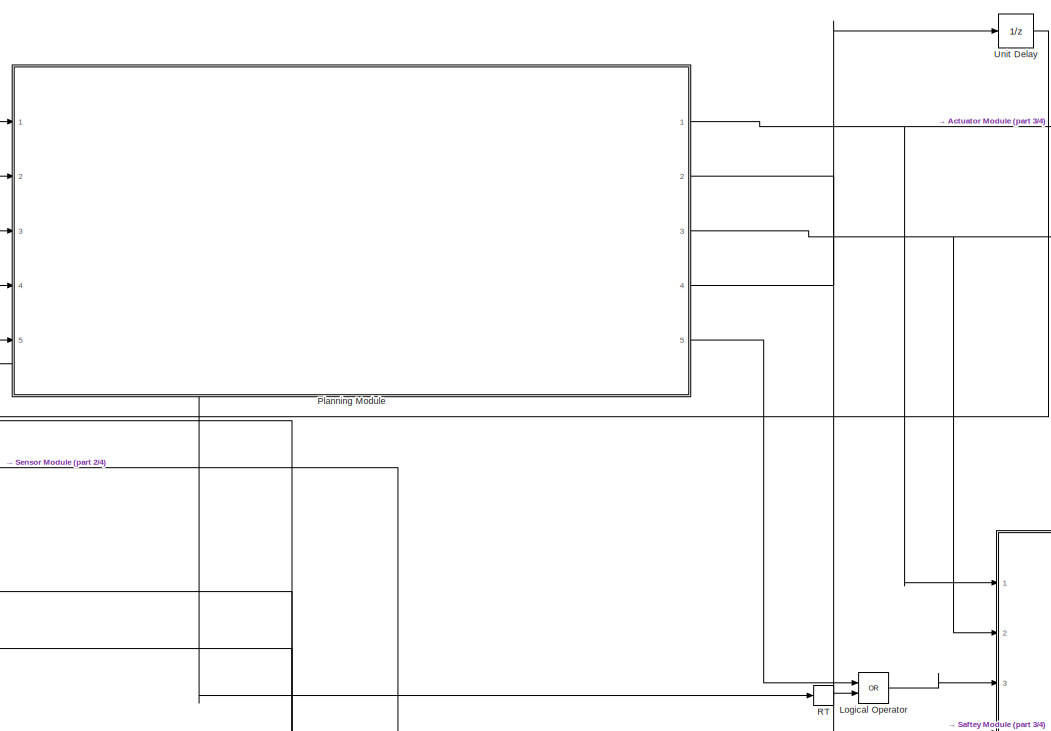
[diagram: root canvas - part 1/4, central region]
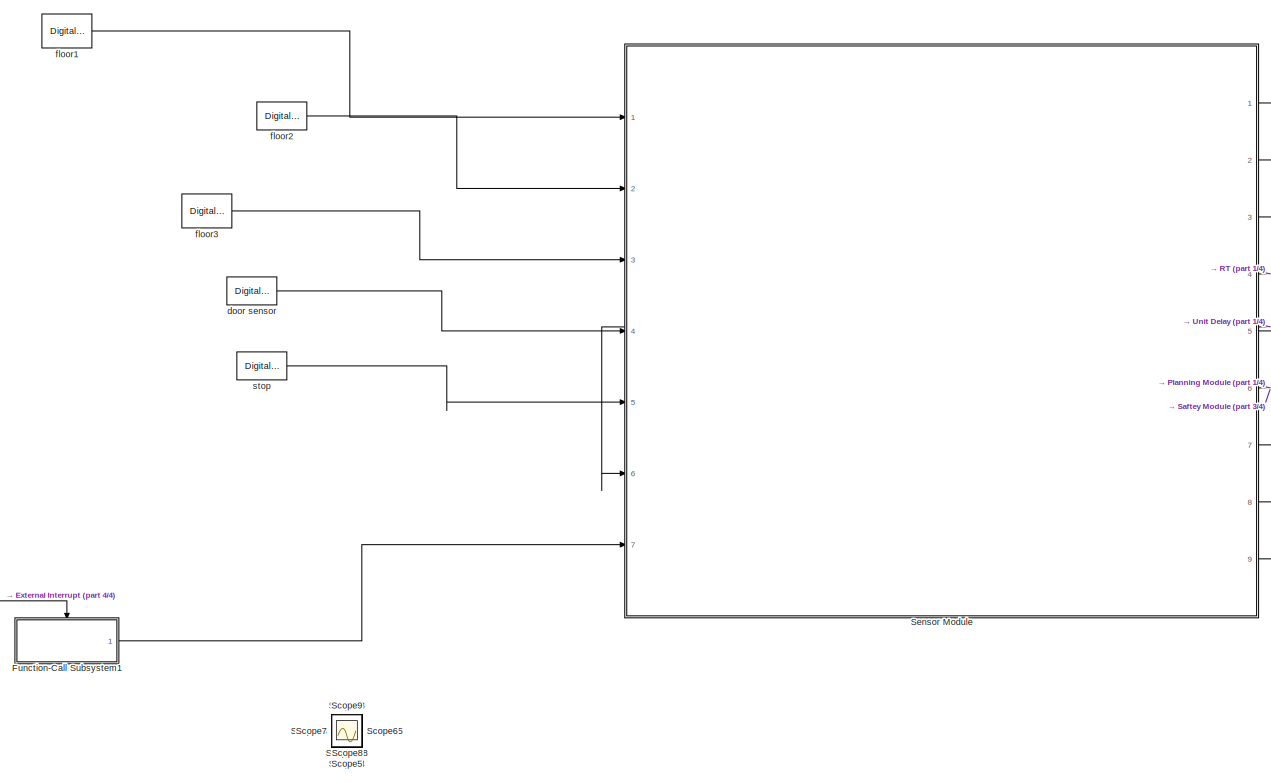
[diagram: root canvas - part 2/4, middle left region]
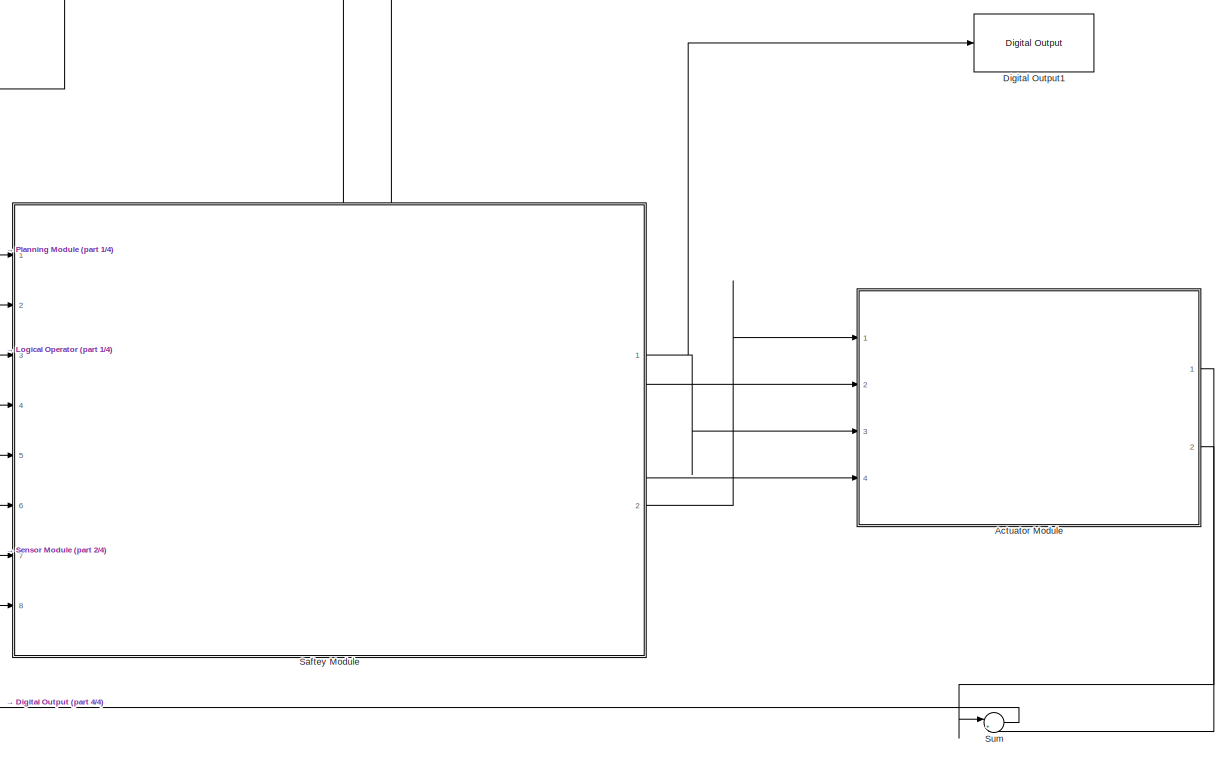
[diagram: root canvas - part 3/4, middle right region]
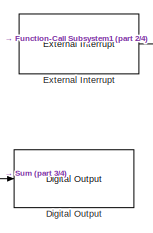
[diagram: root canvas - part 4/4, bottom left region]
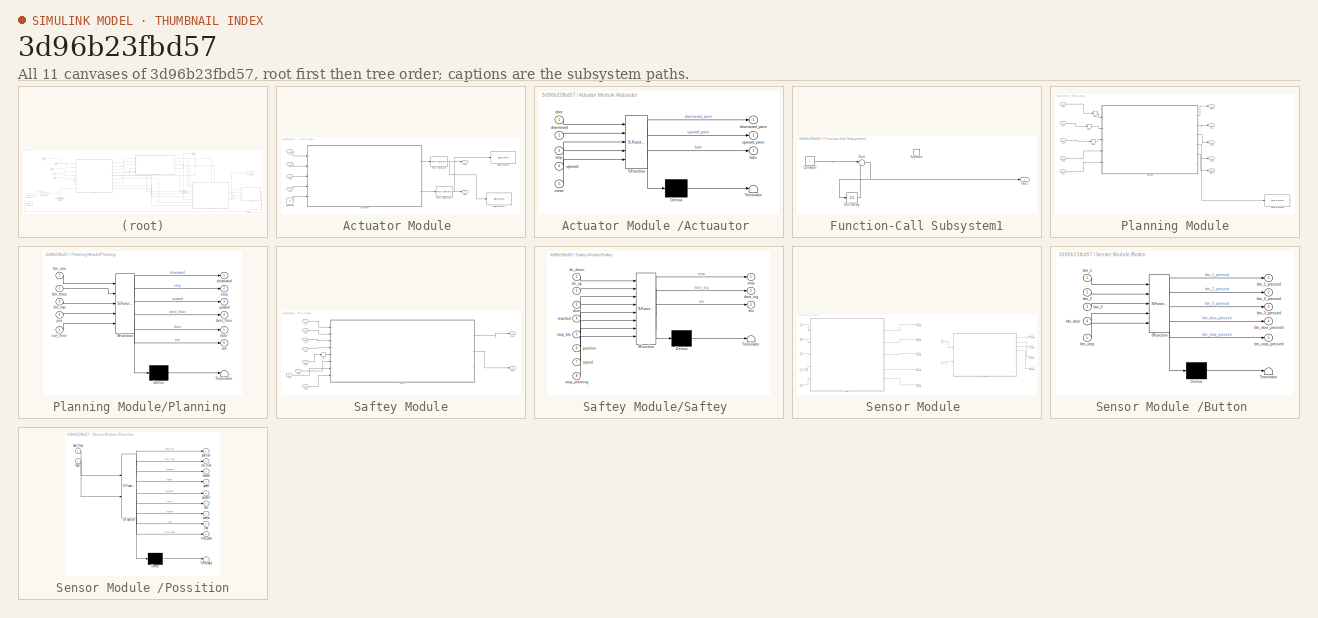
[diagram: thumbnail index - all 11 canvases of the model, root first then tree order]
MODEL slx_3d96b23fbd57
KIND model
CONFIG AbsTol = auto
CONFIG EnableMultiTasking = on
CONFIG FixedStep = auto
CONFIG MaxStep = auto
CONFIG MinStep = auto
CONFIG RelTol = 1e-3
CONFIG SampleTimeConstraint = Unconstrained
CONFIG Solver = FixedStepAuto
CONFIG SolverName = FixedStepAuto
CONFIG StartTime = 0.0
CONFIG StopTime = 20
BLOCK [SubSystem] Actuator Module 
  Ports = [4, 2]
  RequestExecContextInheritance = off
BLOCK [SubSystem] Actuator Module /Actuautor 
  ErrorFcn = Stateflow.Translate.translate
  PermitHierarchicalResolution = ExplicitOnly
  Ports = [5, 3]
  RequestExecContextInheritance = off
  SFBlockType = Chart
  TreatAsAtomicUnit = on
BLOCK [Demux] Actuator Module /Actuautor / Demux 
  Outputs = 1
  Ports = [1, 1]
BLOCK [S-Function] Actuator Module /Actuautor / SFunction 
  EnableBusSupport = on
  FunctionName = sf_sfun
  PortCounts = [5 4]
  Ports = [5, 4]
  SFcnIsStateOwnerBlock = off
  SFunctionDeploymentMode = off
  Tag = Stateflow S-Function 5
BLOCK [Terminator] Actuator Module /Actuautor / Terminator 
BLOCK [Outport] Actuator Module /Actuautor /balo
  IconDisplay = Port number
  Port = 3
BLOCK [Inport] Actuator Module /Actuautor /const
  IconDisplay = Port number
  Port = 5
BLOCK [Inport] Actuator Module /Actuautor /door
  IconDisplay = Port number
BLOCK [Inport] Actuator Module /Actuautor /downward
  IconDisplay = Port number
  Port = 2
BLOCK [Outport] Actuator Module /Actuautor /downward_pwm
  IconDisplay = Port number
  VectorParamsAs1DForOutWhenUnconnected = off
BLOCK [Inport] Actuator Module /Actuautor /stop
  IconDisplay = Port number
  Port = 3
BLOCK [Inport] Actuator Module /Actuautor /upward
  IconDisplay = Port number
  Port = 4
BLOCK [Outport] Actuator Module /Actuautor /upward_pwm
  IconDisplay = Port number
  Port = 2
  VectorParamsAs1DForOutWhenUnconnected = off
BLOCK [Constant] Actuator Module /Constant
  Value = 0.5
BLOCK [Reference] Actuator Module /Digital Output1  REF=arduinolib/Digital Output
  Ports = [1]
  SourceBlock = arduinolib/Digital Output
  SourceProductBaseCode = ARDUINO
  SourceProductName = Simulink Support Package for Arduino Hardware
  SourceType = Arduino Digital Output
BLOCK [Reference] Actuator Module /Digital Output2  REF=arduinolib/Digital Output
  Ports = [1]
  SourceBlock = arduinolib/Digital Output
  SourceProductBaseCode = ARDUINO
  SourceProductName = Simulink Support Package for Arduino Hardware
  SourceType = Arduino Digital Output
BLOCK [Inport] Actuator Module /In1
  IconDisplay = Port number
BLOCK [Inport] Actuator Module /In2
  IconDisplay = Port number
  Port = 2
BLOCK [Inport] Actuator Module /In3
  IconDisplay = Port number
  Port = 3
BLOCK [Inport] Actuator Module /In4
  IconDisplay = Port number
  Port = 4
BLOCK [Outport] Actuator Module /Out1
  IconDisplay = Port number
  VectorParamsAs1DForOutWhenUnconnected = off
BLOCK [Outport] Actuator Module /Out2
  IconDisplay = Port number
  Port = 2
  VectorParamsAs1DForOutWhenUnconnected = off
BLOCK [Reference] Actuator Module /PWM Generator  REF=eePwmGenerator/PWM Generator
  Ports = [1, 1]
  SourceBlock = eePwmGenerator/PWM Generator
  SourceProductBaseCode = PS
  SourceProductName = Simscape Electrical
  SourceType = PWM Generator
BLOCK [Reference] Actuator Module /PWM Generator1  REF=eePwmGenerator/PWM Generator
  Ports = [1, 1]
  SourceBlock = eePwmGenerator/PWM Generator
  SourceProductBaseCode = PS
  SourceProductName = Simscape Electrical
  SourceType = PWM Generator
BLOCK [Reference] Digital Output  REF=arduinolib/Digital Output
  Ports = [1]
  SourceBlock = arduinolib/Digital Output
  SourceProductBaseCode = ARDUINO
  SourceProductName = Simulink Support Package for Arduino Hardware
  SourceType = Arduino Digital Output
BLOCK [Reference] Digital Output1  REF=arduinolib/Digital Output
  Ports = [1]
  SourceBlock = arduinolib/Digital Output
  SourceProductBaseCode = ARDUINO
  SourceProductName = Simulink Support Package for Arduino Hardware
  SourceType = Arduino Digital Output
BLOCK [Reference] External Interrupt  REF=arduinolib/External Interrupt
  Ports = [0, 1]
  SourceBlock = arduinolib/External Interrupt
  SourceProductBaseCode = ARDUINO
  SourceProductName = Simulink Support Package for Arduino Hardware
  SourceType = Arduino Interrupt Block
BLOCK [SubSystem] Function-Call Subsystem1
  Ports = [0, 1, 0, 1]
  RequestExecContextInheritance = off
  TreatAsAtomicUnit = on
BLOCK [Constant] Function-Call Subsystem1/Constant
BLOCK [Outport] Function-Call Subsystem1/Out1
  IconDisplay = Port number
  VectorParamsAs1DForOutWhenUnconnected = off
BLOCK [Sum] Function-Call Subsystem1/Sum
  IconShape = round
  InputSameDT = off
  Inputs = |++
  OutDataTypeStr = Inherit: Inherit via internal rule
  Ports = [2, 1]
  SaturateOnIntegerOverflow = off
BLOCK [UnitDelay] Function-Call Subsystem1/Unit Delay
  HasFrameUpgradeWarning = on
  SampleTime = -1
BLOCK [TriggerPort] Function-Call Subsystem1/function
  Ports = []
  TriggerType = function-call
  VariantControl = Variant
BLOCK [Logic] Logical Operator
  AllPortsSameDT = off
  Operator = OR
  OutDataTypeStr = boolean
  Ports = [2, 1]
BLOCK [SubSystem] Planning Module
  Ports = [5, 5]
  RequestExecContextInheritance = off
BLOCK [Inport] Planning Module/In1
  IconDisplay = Port number
  Port = 5
BLOCK [Inport] Planning Module/In10
  IconDisplay = Port number
  Port = 4
BLOCK [Inport] Planning Module/In6
  IconDisplay = Port number
BLOCK [Inport] Planning Module/In7
  IconDisplay = Port number
  Port = 2
BLOCK [Inport] Planning Module/In8
  IconDisplay = Port number
  Port = 3
BLOCK [Outport] Planning Module/Out10
  IconDisplay = Port number
  Port = 5
  VectorParamsAs1DForOutWhenUnconnected = off
BLOCK [Outport] Planning Module/Out6
  IconDisplay = Port number
  VectorParamsAs1DForOutWhenUnconnected = off
BLOCK [Outport] Planning Module/Out7
  IconDisplay = Port number
  Port = 2
  VectorParamsAs1DForOutWhenUnconnected = off
BLOCK [Outport] Planning Module/Out8
  IconDisplay = Port number
  Port = 3
  VectorParamsAs1DForOutWhenUnconnected = off
BLOCK [Outport] Planning Module/Out9
  IconDisplay = Port number
  Port = 4
  VectorParamsAs1DForOutWhenUnconnected = off
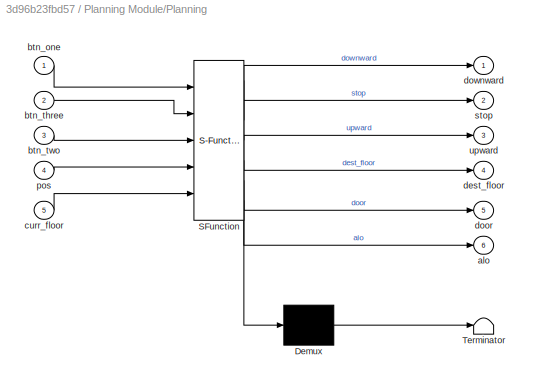
BLOCK [SubSystem] Planning Module/Planning 
  ErrorFcn = Stateflow.Translate.translate
  PermitHierarchicalResolution = ExplicitOnly
  Ports = [5, 6]
  RequestExecContextInheritance = off
  SFBlockType = Chart
  TreatAsAtomicUnit = on
BLOCK [Demux] Planning Module/Planning / Demux 
  Outputs = 1
  Ports = [1, 1]
BLOCK [S-Function] Planning Module/Planning / SFunction 
  EnableBusSupport = on
  FunctionName = sf_sfun
  PortCounts = [5 7]
  Ports = [5, 7]
  SFcnIsStateOwnerBlock = off
  SFunctionDeploymentMode = off
  Tag = Stateflow S-Function 6
BLOCK [Terminator] Planning Module/Planning / Terminator 
BLOCK [Outport] Planning Module/Planning /alo
  IconDisplay = Port number
  Port = 6
BLOCK [Inport] Planning Module/Planning /btn_one
  IconDisplay = Port number
BLOCK [Inport] Planning Module/Planning /btn_three
  IconDisplay = Port number
  Port = 2
BLOCK [Inport] Planning Module/Planning /btn_two
  IconDisplay = Port number
  Port = 3
BLOCK [Inport] Planning Module/Planning /curr_floor
  IconDisplay = Port number
  Port = 5
BLOCK [Outport] Planning Module/Planning /dest_floor
  IconDisplay = Port number
  Port = 4
  VectorParamsAs1DForOutWhenUnconnected = off
BLOCK [Outport] Planning Module/Planning /door
  IconDisplay = Port number
  Port = 5
  VectorParamsAs1DForOutWhenUnconnected = off
BLOCK [Outport] Planning Module/Planning /downward
  IconDisplay = Port number
  VectorParamsAs1DForOutWhenUnconnected = off
BLOCK [Inport] Planning Module/Planning /pos
  IconDisplay = Port number
  Port = 4
BLOCK [Outport] Planning Module/Planning /stop
  IconDisplay = Port number
  Port = 2
  VectorParamsAs1DForOutWhenUnconnected = off
BLOCK [Outport] Planning Module/Planning /upward
  IconDisplay = Port number
  Port = 3
  VectorParamsAs1DForOutWhenUnconnected = off
BLOCK [RateTransition] Planning Module/RT
BLOCK [RateTransition] Planning Module/RT1
  OutPortSampleTime = 5e-05
BLOCK [RateTransition] Planning Module/RT2
  OutPortSampleTime = 5e-05
BLOCK [Reference] Planning Module/Serial Transmit  REF=arduinolib/Serial Transmit
  Ports = [1]
  SourceBlock = arduinolib/Serial Transmit
  SourceProductBaseCode = ARDUINO
  SourceProductName = Simulink Support Package for Arduino Hardware
  SourceType = Arduino Serial Transmit
BLOCK [RateTransition] RT
BLOCK [SubSystem] Saftey Module
  Ports = [8, 2]
  RequestExecContextInheritance = off
BLOCK [Inport] Saftey Module/In1
  IconDisplay = Port number
BLOCK [Inport] Saftey Module/In2
  IconDisplay = Port number
  Port = 2
BLOCK [Inport] Saftey Module/In3
  IconDisplay = Port number
  Port = 3
BLOCK [Inport] Saftey Module/In4
  IconDisplay = Port number
  Port = 4
BLOCK [Inport] Saftey Module/In5
  IconDisplay = Port number
  Port = 5
BLOCK [Inport] Saftey Module/In6
  IconDisplay = Port number
  Port = 7
BLOCK [Inport] Saftey Module/In7
  IconDisplay = Port number
  Port = 8
BLOCK [Inport] Saftey Module/In8
  IconDisplay = Port number
  Port = 6
BLOCK [Outport] Saftey Module/Out1
  IconDisplay = Port number
  VectorParamsAs1DForOutWhenUnconnected = off
BLOCK [Outport] Saftey Module/Out2
  IconDisplay = Port number
  Port = 2
  VectorParamsAs1DForOutWhenUnconnected = off
BLOCK [RateTransition] Saftey Module/RT
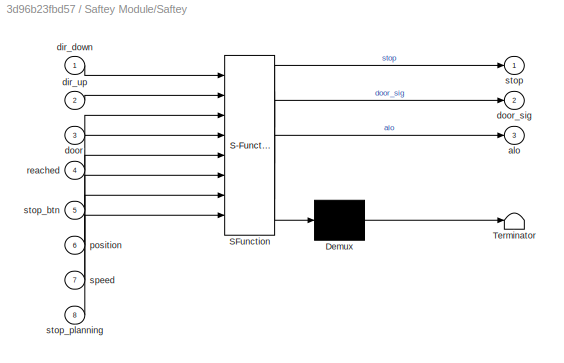
BLOCK [SubSystem] Saftey Module/Saftey 
  ErrorFcn = Stateflow.Translate.translate
  PermitHierarchicalResolution = ExplicitOnly
  Ports = [8, 3]
  RequestExecContextInheritance = off
  SFBlockType = Chart
  TreatAsAtomicUnit = on
BLOCK [Demux] Saftey Module/Saftey / Demux 
  Outputs = 1
  Ports = [1, 1]
BLOCK [S-Function] Saftey Module/Saftey / SFunction 
  EnableBusSupport = on
  FunctionName = sf_sfun
  PortCounts = [8 4]
  Ports = [8, 4]
  SFcnIsStateOwnerBlock = off
  SFunctionDeploymentMode = off
  Tag = Stateflow S-Function 2
BLOCK [Terminator] Saftey Module/Saftey / Terminator 
BLOCK [Outport] Saftey Module/Saftey /alo
  IconDisplay = Port number
  Port = 3
BLOCK [Inport] Saftey Module/Saftey /dir_down
  IconDisplay = Port number
BLOCK [Inport] Saftey Module/Saftey /dir_up
  IconDisplay = Port number
  Port = 2
BLOCK [Inport] Saftey Module/Saftey /door
  IconDisplay = Port number
  Port = 3
BLOCK [Outport] Saftey Module/Saftey /door_sig
  IconDisplay = Port number
  Port = 2
  VectorParamsAs1DForOutWhenUnconnected = off
BLOCK [Inport] Saftey Module/Saftey /position
  IconDisplay = Port number
  Port = 6
BLOCK [Inport] Saftey Module/Saftey /reached
  IconDisplay = Port number
  Port = 4
BLOCK [Inport] Saftey Module/Saftey /speed
  IconDisplay = Port number
  Port = 7
BLOCK [Outport] Saftey Module/Saftey /stop
  IconDisplay = Port number
  VectorParamsAs1DForOutWhenUnconnected = off
BLOCK [Inport] Saftey Module/Saftey /stop_btn
  IconDisplay = Port number
  Port = 5
BLOCK [Inport] Saftey Module/Saftey /stop_planning
  IconDisplay = Port number
  Port = 8
BLOCK [Scope] Scope
  Floating = off
  IOType = viewer
  NumInputPorts = 1
  Ports = []
  ScopeSpecificationString = Simulink.scopes.TimeScopeBlockCfg('CurrentConfiguration', extmgr.ConfigurationSet(extmgr.Configuration('Core','General UI',true),extmgr.Configuration('Core','Source UI',true),extmgr.Configuration('Sources','WiredSimulink',true,'DataLoggingVariableName','ScopeData2'),extmgr.Configuration('Visuals','Time Domain',true,'SerializedDisplays',{struct('MinYLimReal','-36.34613','MaxYLimReal','269.95965','Y...<+1468ch>
BLOCK [Scope] Scope1
  Floating = off
  IOType = viewer
  NumInputPorts = 1
  Ports = []
  ScopeSpecificationString = Simulink.scopes.TimeScopeBlockCfg('CurrentConfiguration', extmgr.ConfigurationSet(extmgr.Configuration('Core','General UI',true),extmgr.Configuration('Core','Source UI',true),extmgr.Configuration('Sources','WiredSimulink',true,'DataLoggingVariableName','ScopeData1'),extmgr.Configuration('Visuals','Time Domain',true,'SerializedDisplays',{struct('MinYLimReal','-1.25','MaxYLimReal','1.25','YLabelReal...<+1341ch>
BLOCK [Scope] Scope10
  Floating = off
  IOType = viewer
  NumInputPorts = 1
  Ports = []
  ScopeSpecificationString = Simulink.scopes.TimeScopeBlockCfg('CurrentConfiguration', extmgr.ConfigurationSet(extmgr.Configuration('Core','General UI',true),extmgr.Configuration('Core','Source UI',true),extmgr.Configuration('Sources','WiredSimulink',true,'DataLoggingVariableName','ScopeData7'),extmgr.Configuration('Visuals','Time Domain',true,'SerializedDisplays',{struct('MinYLimReal','-0.125','MaxYLimReal','1.125','YLabelRe...<+1347ch>
BLOCK [Scope] Scope11
  Floating = off
  IOType = viewer
  NumInputPorts = 1
  Ports = []
  ScopeSpecificationString = Simulink.scopes.TimeScopeBlockCfg('CurrentConfiguration', extmgr.ConfigurationSet(extmgr.Configuration('Core','General UI',true),extmgr.Configuration('Core','Source UI',true),extmgr.Configuration('Sources','WiredSimulink',true,'DataLoggingVariableName','ScopeData8'),extmgr.Configuration('Visuals','Time Domain',true,'SerializedDisplays',{struct('MinYLimReal','-1.25','MaxYLimReal','1.25','YLabelReal...<+1341ch>
BLOCK [Scope] Scope12
  Floating = off
  IOType = viewer
  NumInputPorts = 1
  Ports = []
  ScopeSpecificationString = Simulink.scopes.TimeScopeBlockCfg('CurrentConfiguration', extmgr.ConfigurationSet(extmgr.Configuration('Core','General UI',true),extmgr.Configuration('Core','Source UI',true),extmgr.Configuration('Sources','WiredSimulink',true,'DataLoggingVariableName','ScopeData9'),extmgr.Configuration('Visuals','Time Domain',true,'SerializedDisplays',{struct('MinYLimReal','-1.5','MaxYLimReal','3.02375','YLabelRe...<+1410ch>
BLOCK [Scope] Scope13
  Floating = off
  IOType = viewer
  NumInputPorts = 1
  Ports = []
  ScopeSpecificationString = Simulink.scopes.TimeScopeBlockCfg('CurrentConfiguration', extmgr.ConfigurationSet(extmgr.Configuration('Core','General UI',true),extmgr.Configuration('Core','Source UI',true),extmgr.Configuration('Sources','WiredSimulink',true,'DataLoggingVariableName','ScopeData10'),extmgr.Configuration('Visuals','Time Domain',true,'SerializedDisplays',{struct('MinYLimReal','0.75','MaxYLimReal','3.25','YLabelReal...<+1354ch>
BLOCK [Scope] Scope14
  Floating = off
  IOType = viewer
  NumInputPorts = 1
  Ports = []
  ScopeSpecificationString = Simulink.scopes.TimeScopeBlockCfg('CurrentConfiguration', extmgr.ConfigurationSet(extmgr.Configuration('Core','General UI',true),extmgr.Configuration('Core','Source UI',true),extmgr.Configuration('Sources','WiredSimulink',true,'DataLoggingVariableName','ScopeData11'),extmgr.Configuration('Visuals','Time Domain',true,'SerializedDisplays',{struct('MinYLimReal','-0.125','MaxYLimReal','1.125','YLabelR...<+1362ch>
BLOCK [Scope] Scope15
  Floating = off
  IOType = viewer
  NumInputPorts = 1
  Ports = []
  ScopeSpecificationString = Simulink.scopes.TimeScopeBlockCfg('CurrentConfiguration', extmgr.ConfigurationSet(extmgr.Configuration('Core','General UI',true),extmgr.Configuration('Core','Source UI',true),extmgr.Configuration('Sources','WiredSimulink',true,'DataLoggingVariableName','ScopeData12'),extmgr.Configuration('Visuals','Time Domain',true,'SerializedDisplays',{struct('MinYLimReal','-0.125','MaxYLimReal','1.125','YLabelR...<+1362ch>
BLOCK [Scope] Scope16
  Floating = off
  IOType = viewer
  NumInputPorts = 1
  Ports = []
  ScopeSpecificationString = Simulink.scopes.TimeScopeBlockCfg('CurrentConfiguration', extmgr.ConfigurationSet(extmgr.Configuration('Core','General UI',true),extmgr.Configuration('Core','Source UI',true),extmgr.Configuration('Sources','WiredSimulink',true,'DataLoggingVariableName','ScopeData1'),extmgr.Configuration('Visuals','Time Domain',true,'SerializedDisplays',{struct('MinYLimReal','-1.00000','MaxYLimReal','1.00000','YLab...<+1359ch>  <repeated x3 — deduplicated; at blocks: Scope16, Scope20, Scope4>
BLOCK [Scope] Scope17
  Floating = off
  IOType = viewer
  NumInputPorts = 1
  Ports = []
  ScopeSpecificationString = Simulink.scopes.TimeScopeBlockCfg('CurrentConfiguration', extmgr.ConfigurationSet(extmgr.Configuration('Core','General UI',true),extmgr.Configuration('Core','Source UI',true),extmgr.Configuration('Sources','WiredSimulink',true,'DataLoggingVariableName','ScopeData2'),extmgr.Configuration('Visuals','Time Domain',true,'SerializedDisplays',{struct('MinYLimReal','-0.0625','MaxYLimReal','0.5625','YLabel...<+1374ch>
BLOCK [Scope] Scope18
  Floating = off
  IOType = viewer
  NumInputPorts = 1
  Ports = []
  ScopeSpecificationString = Simulink.scopes.TimeScopeBlockCfg('CurrentConfiguration', extmgr.ConfigurationSet(extmgr.Configuration('Core','General UI',true),extmgr.Configuration('Core','Source UI',true),extmgr.Configuration('Sources','WiredSimulink',true,'DataLoggingVariableName','ScopeData3'),extmgr.Configuration('Visuals','Time Domain',true,'SerializedDisplays',{struct('MinYLimReal','-1.00000','MaxYLimReal','1.00000','YLab...<+1382ch>
BLOCK [Scope] Scope19
  Floating = off
  IOType = viewer
  NumInputPorts = 1
  Ports = []
  ScopeSpecificationString = Simulink.scopes.TimeScopeBlockCfg('CurrentConfiguration', extmgr.ConfigurationSet(extmgr.Configuration('Core','General UI',true),extmgr.Configuration('Core','Source UI',true),extmgr.Configuration('Sources','WiredSimulink',true,'DataLoggingVariableName','ScopeData4'),extmgr.Configuration('Visuals','Time Domain',true,'SerializedDisplays',{struct('MinYLimReal','-0.125','MaxYLimReal','1.125','YLabelRe...<+1350ch>
BLOCK [Scope] Scope2
  Floating = off
  IOType = viewer
  NumInputPorts = 1
  Ports = []
  ScopeSpecificationString = Simulink.scopes.TimeScopeBlockCfg('CurrentConfiguration', extmgr.ConfigurationSet(extmgr.Configuration('Core','General UI',true),extmgr.Configuration('Core','Source UI',true),extmgr.Configuration('Sources','WiredSimulink',true,'DataLoggingVariableName','ScopeData1'),extmgr.Configuration('Visuals','Time Domain',true,'SerializedDisplays',{struct('MinYLimReal','-194.16515','MaxYLimReal','1519.82517',...<+1477ch>
BLOCK [Scope] Scope20
  Floating = off
  IOType = viewer
  NumInputPorts = 1
  Ports = []
BLOCK [Scope] Scope21
  Floating = off
  IOType = viewer
  NumInputPorts = 1
  Ports = []
  ScopeSpecificationString = Simulink.scopes.TimeScopeBlockCfg('CurrentConfiguration', extmgr.ConfigurationSet(extmgr.Configuration('Core','General UI',true),extmgr.Configuration('Core','Source UI',true),extmgr.Configuration('Sources','WiredSimulink',true,'DataLoggingVariableName','ScopeData2'),extmgr.Configuration('Visuals','Time Domain',true,'SerializedDisplays',{struct('MinYLimReal','-0.125','MaxYLimReal','1.125','YLabelRe...<+1347ch>
BLOCK [Scope] Scope22
  Floating = off
  IOType = viewer
  NumInputPorts = 1
  Ports = []
  ScopeSpecificationString = Simulink.scopes.TimeScopeBlockCfg('CurrentConfiguration', extmgr.ConfigurationSet(extmgr.Configuration('Core','General UI',true),extmgr.Configuration('Core','Source UI',true),extmgr.Configuration('Sources','WiredSimulink',true,'DataLoggingVariableName','ScopeData3'),extmgr.Configuration('Visuals','Time Domain',true,'SerializedDisplays',{struct('MinYLimReal','-0.125','MaxYLimReal','1.125','YLabelRe...<+1366ch>
BLOCK [Scope] Scope23
  Floating = off
  IOType = viewer
  NumInputPorts = 1
  Ports = []
  ScopeSpecificationString = Simulink.scopes.TimeScopeBlockCfg('CurrentConfiguration', extmgr.ConfigurationSet(extmgr.Configuration('Core','General UI',true),extmgr.Configuration('Core','Source UI',true),extmgr.Configuration('Sources','WiredSimulink',true,'DataLoggingVariableName','ScopeData1'),extmgr.Configuration('Visuals','Time Domain',true,'SerializedDisplays',{struct('MinYLimReal','-0.125','MaxYLimReal','1.125','YLabelRe...<+1361ch>
BLOCK [Scope] Scope24
  Floating = off
  IOType = viewer
  NumInputPorts = 1
  Ports = []
  ScopeSpecificationString = Simulink.scopes.TimeScopeBlockCfg('CurrentConfiguration', extmgr.ConfigurationSet(extmgr.Configuration('Core','General UI',true),extmgr.Configuration('Core','Source UI',true),extmgr.Configuration('Sources','WiredSimulink',true,'DataLoggingVariableName','ScopeData2'),extmgr.Configuration('Visuals','Time Domain',true,'SerializedDisplays',{struct('MinYLimReal','-0.125','MaxYLimReal','1.125','YLabelRe...<+1347ch>
BLOCK [Scope] Scope25
  Floating = off
  IOType = viewer
  NumInputPorts = 1
  Ports = []
  ScopeSpecificationString = Simulink.scopes.TimeScopeBlockCfg('CurrentConfiguration', extmgr.ConfigurationSet(extmgr.Configuration('Core','General UI',true),extmgr.Configuration('Core','Source UI',true),extmgr.Configuration('Sources','WiredSimulink',true,'DataLoggingVariableName','ScopeData3'),extmgr.Configuration('Visuals','Time Domain',true,'SerializedDisplays',{struct('MinYLimReal','-1.25','MaxYLimReal','1.25','YLabelReal...<+1416ch>
BLOCK [Scope] Scope26
  Floating = off
  IOType = viewer
  NumInputPorts = 1
  Ports = []
  ScopeSpecificationString = Simulink.scopes.TimeScopeBlockCfg('CurrentConfiguration', extmgr.ConfigurationSet(extmgr.Configuration('Core','General UI',true),extmgr.Configuration('Core','Source UI',true),extmgr.Configuration('Sources','WiredSimulink',true,'DataLoggingVariableName','ScopeData1'),extmgr.Configuration('Visuals','Time Domain',true,'SerializedDisplays',{struct('MinYLimReal','0.9','MaxYLimReal','1.1','YLabelReal','...<+1325ch>
BLOCK [Scope] Scope3
  Floating = off
  IOType = viewer
  NumInputPorts = 1
  Ports = []
  ScopeSpecificationString = Simulink.scopes.TimeScopeBlockCfg('CurrentConfiguration', extmgr.ConfigurationSet(extmgr.Configuration('Core','General UI',true),extmgr.Configuration('Core','Source UI',true),extmgr.Configuration('Sources','WiredSimulink',true,'DataLoggingVariableName','ScopeData1'),extmgr.Configuration('Visuals','Time Domain',true,'SerializedDisplays',{struct('MinYLimReal','-0.125','MaxYLimReal','1.125','YLabelRe...<+1364ch>
BLOCK [Scope] Scope4
  Floating = off
  IOType = viewer
  NumInputPorts = 1
  Ports = []
BLOCK [Scope] Scope5
  Floating = off
  IOType = viewer
  NumInputPorts = 1
  Ports = []
  ScopeSpecificationString = Simulink.scopes.TimeScopeBlockCfg('CurrentConfiguration', extmgr.ConfigurationSet(extmgr.Configuration('Core','General UI',true),extmgr.Configuration('Core','Source UI',true),extmgr.Configuration('Sources','WiredSimulink',true,'DataLoggingVariableName','ScopeData2'),extmgr.Configuration('Visuals','Time Domain',true,'SerializedDisplays',{struct('MinYLimReal','-1.00000','MaxYLimReal','1.00000','YLab...<+1359ch>
BLOCK [Scope] Scope6
  Floating = off
  IOType = viewer
  NumInputPorts = 1
  Ports = []
  ScopeSpecificationString = Simulink.scopes.TimeScopeBlockCfg('CurrentConfiguration', extmgr.ConfigurationSet(extmgr.Configuration('Core','General UI',true),extmgr.Configuration('Core','Source UI',true),extmgr.Configuration('Sources','WiredSimulink',true,'DataLoggingVariableName','ScopeData3'),extmgr.Configuration('Visuals','Time Domain',true,'SerializedDisplays',{struct('MinYLimReal','-0.375','MaxYLimReal','3.375','YLabelRe...<+1347ch>
BLOCK [Scope] Scope7
  Floating = off
  IOType = viewer
  NumInputPorts = 1
  Ports = []
  ScopeSpecificationString = Simulink.scopes.TimeScopeBlockCfg('CurrentConfiguration', extmgr.ConfigurationSet(extmgr.Configuration('Core','General UI',true),extmgr.Configuration('Core','Source UI',true),extmgr.Configuration('Sources','WiredSimulink',true,'DataLoggingVariableName','ScopeData4'),extmgr.Configuration('Visuals','Time Domain',true,'SerializedDisplays',{struct('MinYLimReal','-0.125','MaxYLimReal','1.125','YLabelRe...<+1347ch>
BLOCK [Scope] Scope8
  Floating = off
  IOType = viewer
  NumInputPorts = 1
  Ports = []
  ScopeSpecificationString = Simulink.scopes.TimeScopeBlockCfg('CurrentConfiguration', extmgr.ConfigurationSet(extmgr.Configuration('Core','General UI',true),extmgr.Configuration('Core','Source UI',true),extmgr.Configuration('Sources','WiredSimulink',true,'DataLoggingVariableName','ScopeData5'),extmgr.Configuration('Visuals','Time Domain',true,'SerializedDisplays',{struct('MinYLimReal','-1.00000','MaxYLimReal','1.00000','YLab...<+1359ch>
BLOCK [Scope] Scope9
  Floating = off
  IOType = viewer
  NumInputPorts = 1
  Ports = []
  ScopeSpecificationString = Simulink.scopes.TimeScopeBlockCfg('CurrentConfiguration', extmgr.ConfigurationSet(extmgr.Configuration('Core','General UI',true),extmgr.Configuration('Core','Source UI',true),extmgr.Configuration('Sources','WiredSimulink',true,'DataLoggingVariableName','ScopeData6'),extmgr.Configuration('Visuals','Time Domain',true,'SerializedDisplays',{struct('MinYLimReal','-0.125','MaxYLimReal','1.125','YLabelRe...<+1368ch>
BLOCK [SubSystem] Sensor Module 
  Ports = [7, 9]
  RequestExecContextInheritance = off
BLOCK [SubSystem] Sensor Module /Button 
  ErrorFcn = Stateflow.Translate.translate
  PermitHierarchicalResolution = ExplicitOnly
  Ports = [5, 5]
  RequestExecContextInheritance = off
  SFBlockType = Chart
  TreatAsAtomicUnit = on
BLOCK [Demux] Sensor Module /Button / Demux 
  Outputs = 1
  Ports = [1, 1]
BLOCK [S-Function] Sensor Module /Button / SFunction 
  EnableBusSupport = on
  FunctionName = sf_sfun
  PortCounts = [5 6]
  Ports = [5, 6]
  SFcnIsStateOwnerBlock = off
  SFunctionDeploymentMode = off
  Tag = Stateflow S-Function 3
BLOCK [Terminator] Sensor Module /Button / Terminator 
BLOCK [Inport] Sensor Module /Button /btn_1
  IconDisplay = Port number
BLOCK [Outport] Sensor Module /Button /btn_1_pressed
  IconDisplay = Port number
BLOCK [Inport] Sensor Module /Button /btn_2
  IconDisplay = Port number
  Port = 2
BLOCK [Outport] Sensor Module /Button /btn_2_pressed
  IconDisplay = Port number
  Port = 2
BLOCK [Inport] Sensor Module /Button /btn_3
  IconDisplay = Port number
  Port = 3
BLOCK [Outport] Sensor Module /Button /btn_3_pressed
  IconDisplay = Port number
  Port = 3
BLOCK [Inport] Sensor Module /Button /btn_door
  IconDisplay = Port number
  Port = 4
BLOCK [Outport] Sensor Module /Button /btn_door_pressed
  IconDisplay = Port number
  Port = 4
BLOCK [Inport] Sensor Module /Button /btn_stop
  IconDisplay = Port number
  Port = 5
BLOCK [Outport] Sensor Module /Button /btn_stop_pressed
  IconDisplay = Port number
  Port = 5
BLOCK [Inport] Sensor Module /In1
  IconDisplay = Port number
BLOCK [Inport] Sensor Module /In2
  IconDisplay = Port number
  Port = 2
BLOCK [Inport] Sensor Module /In3
  IconDisplay = Port number
  Port = 3
BLOCK [Inport] Sensor Module /In4
  IconDisplay = Port number
  Port = 4
BLOCK [Inport] Sensor Module /In5
  IconDisplay = Port number
  Port = 5
BLOCK [Inport] Sensor Module /In6
  IconDisplay = Port number
  Port = 6
BLOCK [Inport] Sensor Module /In7
  IconDisplay = Port number
  Port = 7
BLOCK [Outport] Sensor Module /Outport1
  IconDisplay = Port number
BLOCK [Outport] Sensor Module /Outport10
  IconDisplay = Port number
  Port = 8
BLOCK [Outport] Sensor Module /Outport11
  IconDisplay = Port number
  Port = 9
BLOCK [Outport] Sensor Module /Outport2
  IconDisplay = Port number
  Port = 2
BLOCK [Outport] Sensor Module /Outport3
  IconDisplay = Port number
  Port = 3
BLOCK [Outport] Sensor Module /Outport4
  IconDisplay = Port number
  Port = 4
BLOCK [Outport] Sensor Module /Outport5
  IconDisplay = Port number
  Port = 5
BLOCK [Outport] Sensor Module /Outport8
  IconDisplay = Port number
  Port = 6
BLOCK [Outport] Sensor Module /Outport9
  IconDisplay = Port number
  Port = 7
BLOCK [SubSystem] Sensor Module /Possition
  ErrorFcn = Stateflow.Translate.translate
  PermitHierarchicalResolution = ExplicitOnly
  Ports = [2, 9]
  RequestExecContextInheritance = off
  SFBlockType = Chart
  TreatAsAtomicUnit = on
BLOCK [Demux] Sensor Module /Possition/ Demux 
  Outputs = 1
  Ports = [1, 1]
BLOCK [S-Function] Sensor Module /Possition/ SFunction 
  EnableBusSupport = on
  FunctionName = sf_sfun
  PortCounts = [2 10]
  Ports = [2, 10]
  SFcnIsStateOwnerBlock = off
  SFunctionDeploymentMode = off
  Tag = Stateflow S-Function 1
BLOCK [Terminator] Sensor Module /Possition/ Terminator 
BLOCK [Outport] Sensor Module /Possition/counter
  IconDisplay = Port number
  Port = 7
BLOCK [Outport] Sensor Module /Possition/curr_floor
  IconDisplay = Port number
  Port = 2
  VectorParamsAs1DForOutWhenUnconnected = off
BLOCK [Inport] Sensor Module /Possition/dest_floor
  IconDisplay = Port number
BLOCK [Outport] Sensor Module /Possition/last
  IconDisplay = Port number
  Port = 8
BLOCK [Outport] Sensor Module /Possition/position
  IconDisplay = Port number
  VectorParamsAs1DForOutWhenUnconnected = off
BLOCK [Outport] Sensor Module /Possition/reached
  IconDisplay = Port number
  Port = 3
  VectorParamsAs1DForOutWhenUnconnected = off
BLOCK [Outport] Sensor Module /Possition/speed
  IconDisplay = Port number
  Port = 4
  VectorParamsAs1DForOutWhenUnconnected = off
BLOCK [Outport] Sensor Module /Possition/talo
  IconDisplay = Port number
  Port = 6
BLOCK [Inport] Sensor Module /Possition/tape
  IconDisplay = Port number
  Port = 2
BLOCK [Outport] Sensor Module /Possition/time_count
  IconDisplay = Port number
  Port = 9
BLOCK [Outport] Sensor Module /Possition/up_down
  IconDisplay = Port number
  Port = 5
BLOCK [RateTransition] Sensor Module /RT
  OutPortSampleTime = 0.001
BLOCK [Sum] Sum
  IconShape = round
  InputSameDT = off
  Inputs = |++
  OutDataTypeStr = Inherit: Inherit via internal rule
  Ports = [2, 1]
  SaturateOnIntegerOverflow = off
BLOCK [UnitDelay] Unit Delay
  HasFrameUpgradeWarning = on
  SampleTime = -1
BLOCK [Reference] door sensor  REF=arduinolib/Digital Input
  Ports = [0, 1]
  SourceBlock = arduinolib/Digital Input
  SourceProductBaseCode = ARDUINO
  SourceProductName = Simulink Support Package for Arduino Hardware
  SourceType = Arduino Digital Input
BLOCK [Reference] floor1  REF=arduinolib/Digital Input
  Ports = [0, 1]
  SourceBlock = arduinolib/Digital Input
  SourceProductBaseCode = ARDUINO
  SourceProductName = Simulink Support Package for Arduino Hardware
  SourceType = Arduino Digital Input
BLOCK [Reference] floor2  REF=arduinolib/Digital Input
  Ports = [0, 1]
  SourceBlock = arduinolib/Digital Input
  SourceProductBaseCode = ARDUINO
  SourceProductName = Simulink Support Package for Arduino Hardware
  SourceType = Arduino Digital Input
BLOCK [Reference] floor3  REF=arduinolib/Digital Input
  Ports = [0, 1]
  SourceBlock = arduinolib/Digital Input
  SourceProductBaseCode = ARDUINO
  SourceProductName = Simulink Support Package for Arduino Hardware
  SourceType = Arduino Digital Input
BLOCK [Reference] stop  REF=arduinolib/Digital Input
  Ports = [0, 1]
  SourceBlock = arduinolib/Digital Input
  SourceProductBaseCode = ARDUINO
  SourceProductName = Simulink Support Package for Arduino Hardware
  SourceType = Arduino Digital Input
LINE Actuator Module /Actuautor :1 -> Actuator Module /PWM Generator:1
LINE Actuator Module /Actuautor :2 -> Actuator Module /PWM Generator1:1
LINE Actuator Module /Constant:1 -> Actuator Module /Actuautor :5
LINE Actuator Module /In1:1 -> Actuator Module /Actuautor :1
LINE Actuator Module /In2:1 -> Actuator Module /Actuautor :2
LINE Actuator Module /In3:1 -> Actuator Module /Actuautor :3
LINE Actuator Module /In4:1 -> Actuator Module /Actuautor :4
NET Actuator Module /PWM Generator1:1 -> Actuator Module /Digital Output2:1, Actuator Module /Out1:1
NET Actuator Module /PWM Generator:1 -> Actuator Module /Digital Output1:1, Actuator Module /Out2:1
LINE Actuator Module :1 -> Sum:1
LINE Actuator Module :2 -> Sum:2
LINE External Interrupt:1 -> Function-Call Subsystem1:trigger
LINE Function-Call Subsystem1/Constant:1 -> Function-Call Subsystem1/Sum:1
NET Function-Call Subsystem1/Sum:1 -> Function-Call Subsystem1/Out1:1, Function-Call Subsystem1/Unit Delay:1
LINE Function-Call Subsystem1/Unit Delay:1 -> Function-Call Subsystem1/Sum:2
LINE Function-Call Subsystem1:1 -> Sensor Module :7
LINE Logical Operator:1 -> Saftey Module:3
LINE Planning Module/In10:1 -> Planning Module/Planning :4
LINE Planning Module/In1:1 -> Planning Module/Planning :5
LINE Planning Module/In6:1 -> Planning Module/RT2:1
LINE Planning Module/In7:1 -> Planning Module/RT:1
LINE Planning Module/In8:1 -> Planning Module/RT1:1
LINE Planning Module/Planning :1 -> Planning Module/Out6:1
LINE Planning Module/Planning :2 -> Planning Module/Out7:1
LINE Planning Module/Planning :3 -> Planning Module/Out8:1
NET Planning Module/Planning :4 -> Planning Module/Out9:1, Planning Module/Serial Transmit:1
LINE Planning Module/Planning :5 -> Planning Module/Out10:1
LINE Planning Module/RT1:1 -> Planning Module/Planning :3
LINE Planning Module/RT2:1 -> Planning Module/Planning :1
LINE Planning Module/RT:1 -> Planning Module/Planning :2
NET Planning Module:1 -> Actuator Module :2, Saftey Module:1
LINE Planning Module:2 -> Saftey Module:6
NET Planning Module:3 -> Actuator Module :4, Saftey Module:2
LINE Planning Module:4 -> Unit Delay:1
LINE Planning Module:5 -> Logical Operator:1
LINE RT:1 -> Logical Operator:2
LINE Saftey Module/In1:1 -> Saftey Module/Saftey :1
LINE Saftey Module/In2:1 -> Saftey Module/Saftey :2
LINE Saftey Module/In3:1 -> Saftey Module/Saftey :3
LINE Saftey Module/In4:1 -> Saftey Module/Saftey :4
LINE Saftey Module/In5:1 -> Saftey Module/RT:1
LINE Saftey Module/In6:1 -> Saftey Module/Saftey :6
LINE Saftey Module/In7:1 -> Saftey Module/Saftey :7
LINE Saftey Module/In8:1 -> Saftey Module/Saftey :8
LINE Saftey Module/RT:1 -> Saftey Module/Saftey :5
LINE Saftey Module/Saftey :1 -> Saftey Module/Out1:1
LINE Saftey Module/Saftey :2 -> Saftey Module/Out2:1
NET Saftey Module:1 -> Actuator Module :3, Digital Output1:1
LINE Saftey Module:2 -> Actuator Module :1
LINE Sensor Module /Button :1 -> Sensor Module /Outport1:1
LINE Sensor Module /Button :2 -> Sensor Module /Outport2:1
LINE Sensor Module /Button :3 -> Sensor Module /Outport3:1
LINE Sensor Module /Button :4 -> Sensor Module /Outport4:1
LINE Sensor Module /Button :5 -> Sensor Module /Outport5:1
LINE Sensor Module /In1:1 -> Sensor Module /Button :1
LINE Sensor Module /In2:1 -> Sensor Module /Button :2
LINE Sensor Module /In3:1 -> Sensor Module /Button :3
LINE Sensor Module /In4:1 -> Sensor Module /RT:1
LINE Sensor Module /In5:1 -> Sensor Module /Button :5
LINE Sensor Module /In6:1 -> Sensor Module /Possition:1
LINE Sensor Module /In7:1 -> Sensor Module /Possition:2
LINE Sensor Module /Possition:1 -> Sensor Module /Outport8:1
LINE Sensor Module /Possition:2 -> Sensor Module /Outport9:1
LINE Sensor Module /Possition:3 -> Sensor Module /Outport10:1
LINE Sensor Module /Possition:4 -> Sensor Module /Outport11:1
LINE Sensor Module /RT:1 -> Sensor Module /Button :4
LINE Sensor Module :1 -> Planning Module:1
LINE Sensor Module :2 -> Planning Module:3
LINE Sensor Module :3 -> Planning Module:2
LINE Sensor Module :4 -> RT:1
LINE Sensor Module :5 -> Saftey Module:5
NET Sensor Module :6 -> Planning Module:4, Saftey Module:7
LINE Sensor Module :7 -> Planning Module:5
LINE Sensor Module :8 -> Saftey Module:4
LINE Sensor Module :9 -> Saftey Module:8
LINE Sum:1 -> Digital Output:1
LINE Unit Delay:1 -> Sensor Module :6
LINE door sensor:1 -> Sensor Module :4
LINE floor1:1 -> Sensor Module :1
LINE floor2:1 -> Sensor Module :2
LINE floor3:1 -> Sensor Module :3
LINE stop:1 -> Sensor Module :5
note: NET lines group one-source signal fan-out (src -> all destinations, sorted); 1:1 wires keep LINE
CHART Sensor Module
/Possition states=12 transitions=18
  STATE_LABEL 'NOT_INIT'
  STATE_LABEL 'POSITION_CALCULATION'
  STATE_LABEL 'NOT_MOVING\nentry :\ncounter = 0;\nup_down = 0;\nposition = (curr_floor - 1) * 400;\nlast_pos = position;\nreached = 1;\nspeed = 0;\ntalo = 0;\n'
  STATE_LABEL 'NOT_EQUAL\nentry :\nlast = (tape);\n'
  STATE_LABEL 'MOVING\nentry :\nposition = ((curr_floor - 1) * 400) + up_down * counter;\ndir_up = max(up_down, 0);\ndir_down = max(-up_down ,0);\nreached = 0;\n'
  STATE_LABEL 'ONE_FLOOR_REACHED\nentry:\ncounter = 0;\ncurr_floor = curr_floor + up_down;\ntalo = tape + last;'
  STATE_LABEL 'NOT_EQUAL2\nentry:\nlast = (tape);\ncounter = counter + 1;\n'
  STATE_LABEL '[curr_floor > dest_floor && dest_floor ~= -1]{up_down = -1}'
  STATE_LABEL '[curr_floor < dest_floor && dest_floor ~= -1]{up_down = 1}'
  STATE_LABEL '[dest_floor == -1]'
  STATE_LABEL '[(tape) ~= last]'
  STATE_LABEL '[(tape) == last]'
  STATE_LABEL '[counter < 400]'
  STATE_LABEL '[ (tape) ~= last]'
  STATE_LABEL '[counter >= 400]'
  STATE_LABEL 'H'
  STATE_LABEL 'SPEED_CALC'
  STATE_LABEL 'Speed\nentry:\nspeed = abs(position-last_pos);\nlast_pos = position;'
  STATE_LABEL 'after(1,sec)'
  STATE_LABEL 'H'
  STATE_LABEL 'POSITION_CALCULATION'
  STATE_LABEL 'NOT_MOVING\nentry :\ncounter = 0;\nup_down = 0;\nposition = (curr_floor - 1) * 400;\nlast_pos = position;\nreached = 1;\nspeed = 0;\ntalo = 0;\n'
  STATE_LABEL 'NOT_EQUAL\nentry :\nlast = (tape);\n'
  STATE_LABEL 'MOVING\nentry :\nposition = ((curr_floor - 1) * 400) + up_down * counter;\ndir_up = max(up_down, 0);\ndir_down = max(-up_down ,0);\nreached = 0;\n'
  STATE_LABEL 'ONE_FLOOR_REACHED\nentry:\ncounter = 0;\ncurr_floor = curr_floor + up_down;\ntalo = tape + last;'
  STATE_LABEL 'NOT_EQUAL2\nentry:\nlast = (tape);\ncounter = counter + 1;\n'
  STATE_LABEL '[curr_floor > dest_floor && dest_floor ~= -1]{up_down = -1}'
  STATE_LABEL '[curr_floor < dest_floor && dest_floor ~= -1]{up_down = 1}'
  STATE_LABEL '[dest_floor == -1]'
  STATE_LABEL '[(tape) ~= last]'
  STATE_LABEL '[(tape) == last]'
  STATE_LABEL '[counter < 400]'
  STATE_LABEL '[ (tape) ~= last]'
  STATE_LABEL '[counter >= 400]'
  STATE_LABEL 'H'
  STATE_LABEL 'NOT_MOVING\nentry :\ncounter = 0;\nup_down = 0;\nposition = (curr_floor - 1) * 400;\nlast_pos = position;\nreached = 1;\nspeed = 0;\ntalo = 0;\n'
  STATE_LABEL 'NOT_EQUAL\nentry :\nlast = (tape);\n'
  STATE_LABEL 'MOVING\nentry :\nposition = ((curr_floor - 1) * 400) + up_down * counter;\ndir_up = max(up_down, 0);\ndir_down = max(-up_down ,0);\nreached = 0;\n'
  STATE_LABEL 'ONE_FLOOR_REACHED\nentry:\ncounter = 0;\ncurr_floor = curr_floor + up_down;\ntalo = tape + last;'
  STATE_LABEL 'NOT_EQUAL2\nentry:\nlast = (tape);\ncounter = counter + 1;\n'
CHART Saftey Module/Saftey

 states=6 transitions=16
  STATE_LABEL 'POSITION_DOWN\nentry :\nstop = 1;\nalo = 5;'
  STATE_LABEL 'MONITOR\nduring:\nstop = 0;\nalo = 0;'
  STATE_LABEL 'POSITION_TOP\nentry :\nstop = 1;\nalo = 4;'
  STATE_LABEL 'DOOR\nentry :\nstop = 1;\ndoor_sig = 1;\nalo = 1;'
  STATE_LABEL 'STOP_BTN\nentry :\nstop = 1;\nalo = 2;'
  STATE_LABEL 'SPEED\nentry :\nstop = 1;\nalo = 3;'
CHART Sensor Module
/Button
 states=11 transitions=21
  STATE_LABEL 'TIMER_DOOR'
  STATE_LABEL 'BTN_DOOR_PRESSED\nentry:\nbtn_door_pressed = 1;'
  STATE_LABEL 'TIMER_1'
  STATE_LABEL 'IDLE\nentry:\nbtn_1_pressed = 0;\nbtn_2_pressed = 0;\nbtn_3_pressed = 0;\nbtn_stop_pressed = 0;\nbtn_door_pressed = 0;\n'
  STATE_LABEL 'BTN_1_PRESSED\nentry:\nbtn_1_pressed = 1;'
  STATE_LABEL 'TIMER_STOP'
  STATE_LABEL 'TIMER_2'
  STATE_LABEL 'TIMER_3'
  STATE_LABEL 'BTN_STOP_PRESSED\nentry:\nbtn_stop_pressed = 1;'
  STATE_LABEL 'BTN_2_PRESSED\nentry:\nbtn_2_pressed = 1;'
  STATE_LABEL 'BTN_3_PRESSED3\nentry:\nbtn_3_pressed = 1;'
CHART Actuator Module
/Actuautor
 states=2 transitions=4
  STATE_LABEL 'NOT_STOP\nentry:\nbalo = 0;\n'
  STATE_LABEL 'STOP\nentry:\nbalo = 1\nupward_pwm = 0;\ndownward_pwm = 0;'
CHART Planning Module/Planning
 states=15 transitions=29
  STATE_LABEL 'NOT_INIT'
  STATE_LABEL 'INPUT'
  STATE_LABEL 'btn_read\n'
  STATE_LABEL '[ btn_three == 1]{three_pressed = 1;}'
  STATE_LABEL '[ btn_two == 1]{two_pressed = 1;}'
  STATE_LABEL '[ btn_one == 1]{one_pressed = 1;}'
  STATE_LABEL 'PLANNING'
  STATE_LABEL 'IDLE'
  STATE_LABEL 'MOVE_DOWN\nentry:\nupward =0;\ndownward = 1;'
  STATE_LABEL 'MOVE_UP\nentry:\ndownward = 0;\nupward = 1;'
  STATE_LABEL '[dest_floor > curr_floor]'
  STATE_LABEL '[dest_floor ~= -1 && dest_floor < curr_floor]'
  STATE_LABEL '[curr_floor == dest_floor && dest_floor == 1]{downward=0;dest_floor = -1;one_pressed = 0;}'
  STATE_LABEL '[curr_floor == dest_floor && dest_floor == 1]{upward=0;dest_floor = -1;one_pressed = 0;}'
  STATE_LABEL '[curr_floor == dest_floor && dest_floor == 3]{downward=0;dest_floor = -1;three_pressed = 0;}'
  STATE_LABEL '[curr_floor == dest_floor && dest_floor == 2]{downward=0;dest_floor = -1;two_pressed = 0;}'
  STATE_LABEL '[curr_floor == dest_floor && dest_floor == 3]{upward=0;dest_floor = -1;three_pressed = 0;}'
  STATE_LABEL '[curr_floor == dest_floor && dest_floor == 2]{upward=0;dest_floor = -1;two_pressed = 0;}'
  STATE_LABEL 'DESTINATION'
  STATE_LABEL 'NOT_MOVING\nentry:\nalo = 1\nstop = 0;\ndoor = 0;'
  STATE_LABEL 'F2\nentry:\ndest_floor = 2'
  STATE_LABEL 'F3\nentry:\ndest_floor = 3'
  STATE_LABEL 'F1\nentry:\ndest_floor = 1'
  STATE_LABEL 'MOVING'
  STATE_LABEL 'REACH_FLOOR\nentry:\ndoor = 1;\nstop = 1;'
  STATE_LABEL '[after(1,msec)]{door = 0; stop = 0;}'
  STATE_LABEL '[curr_floor == 3 && two_pressed == 1 ]'
  STATE_LABEL '[curr_floor == 3 && one_pressed == 1 && two_pressed == 0]'
  STATE_LABEL '[curr_floor == 1 && two_pressed == 1 ]{alo = 0}'
  STATE_LABEL '[curr_floor == 2 && one_pressed == 1 && three_pressed == 0 ]'
  STATE_LABEL '[curr_floor == 2 && three_pressed ==  1]{alo = 0}'
  STATE_LABEL '[curr_floor == 1 && two_pressed == 0 && three_pressed ==  1]'
  STATE_LABEL '[two_pressed == 1 && dest_floor == 3 && pos < 200]{dest_floor = 2}'
  STATE_LABEL '[dest_floor == -1]'
  STATE_LABEL '[two_pressed == 1 && dest_floor == 1 && pos > 600]{dest_floor = 2}'
  STATE_LABEL 'INPUT'
  STATE_LABEL 'btn_read\n'
  STATE_LABEL '[ btn_three == 1]{three_pressed = 1;}'
  STATE_LABEL '[ btn_two == 1]{two_pressed = 1;}'
  STATE_LABEL '[ btn_one == 1]{one_pressed = 1;}'
